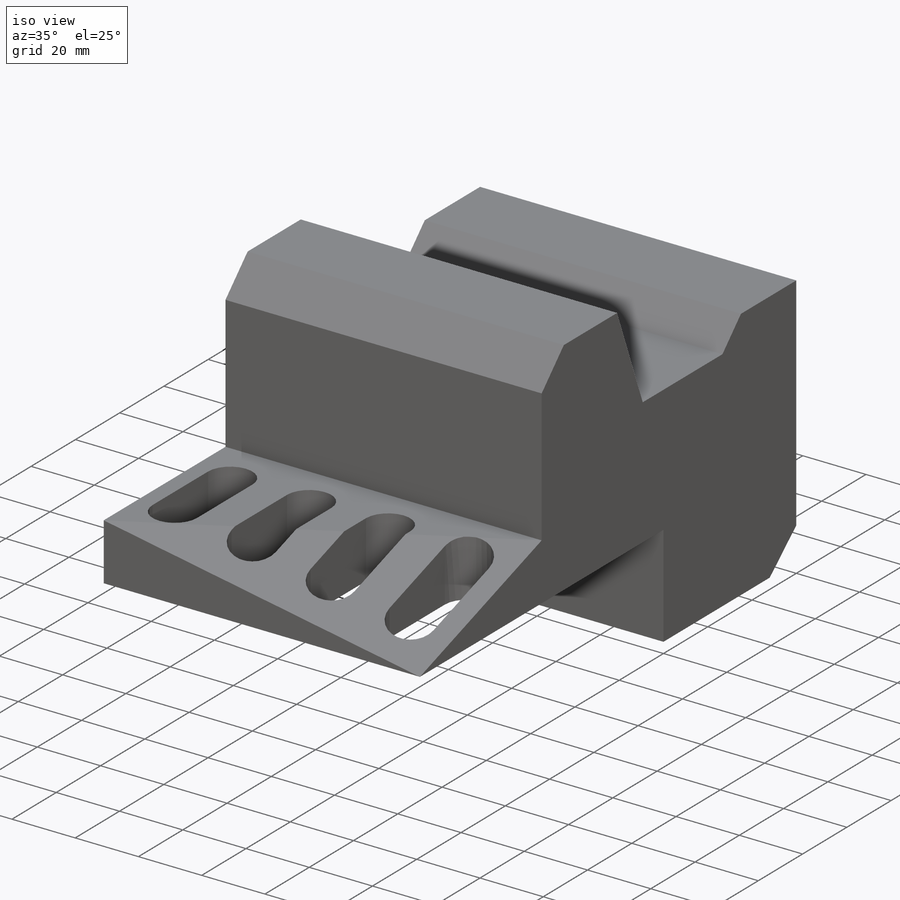
[diagram: iso view]
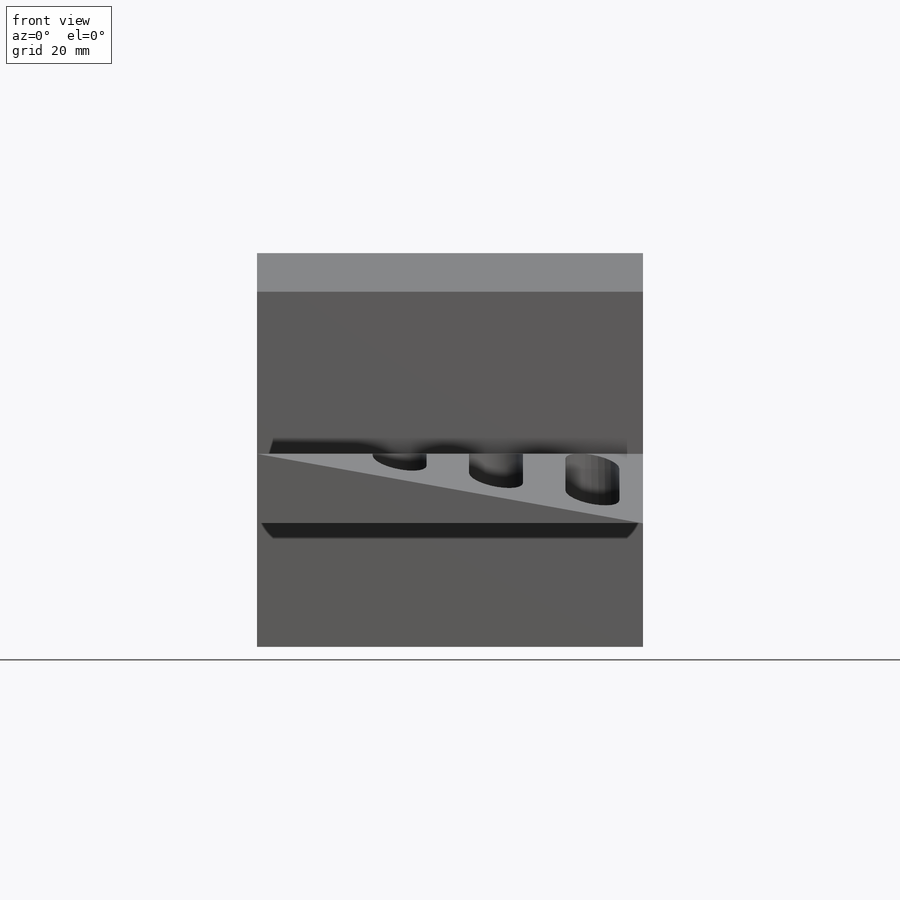
[diagram: front view]
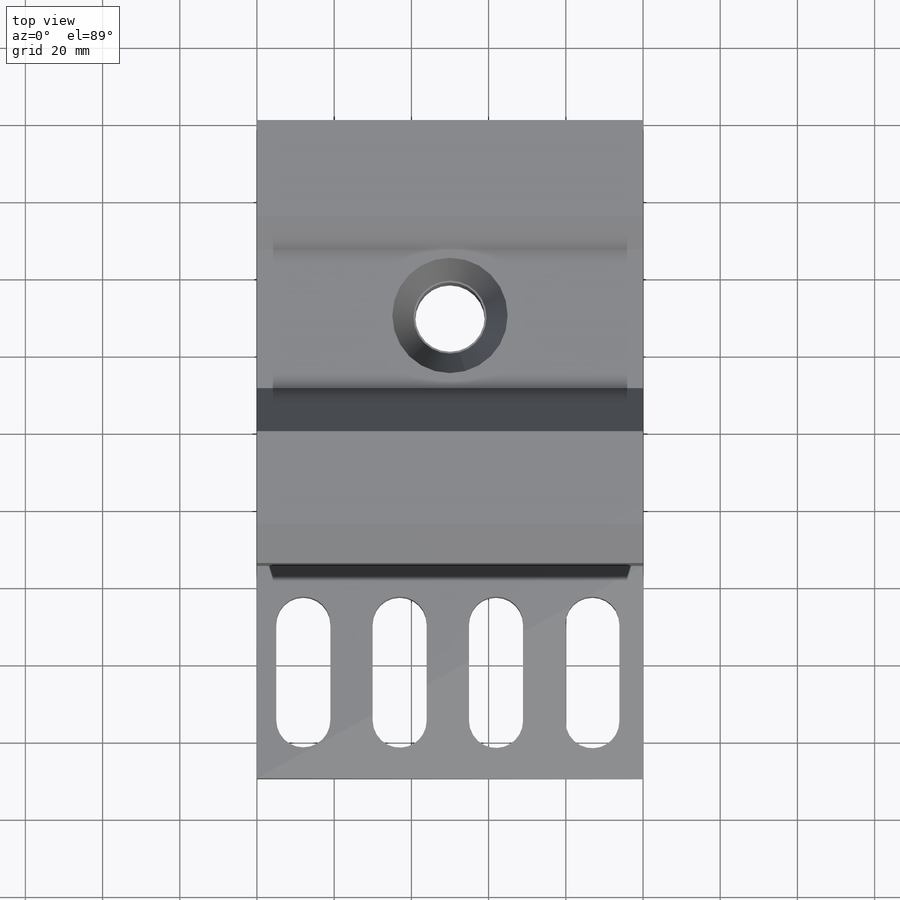
[diagram: top view]
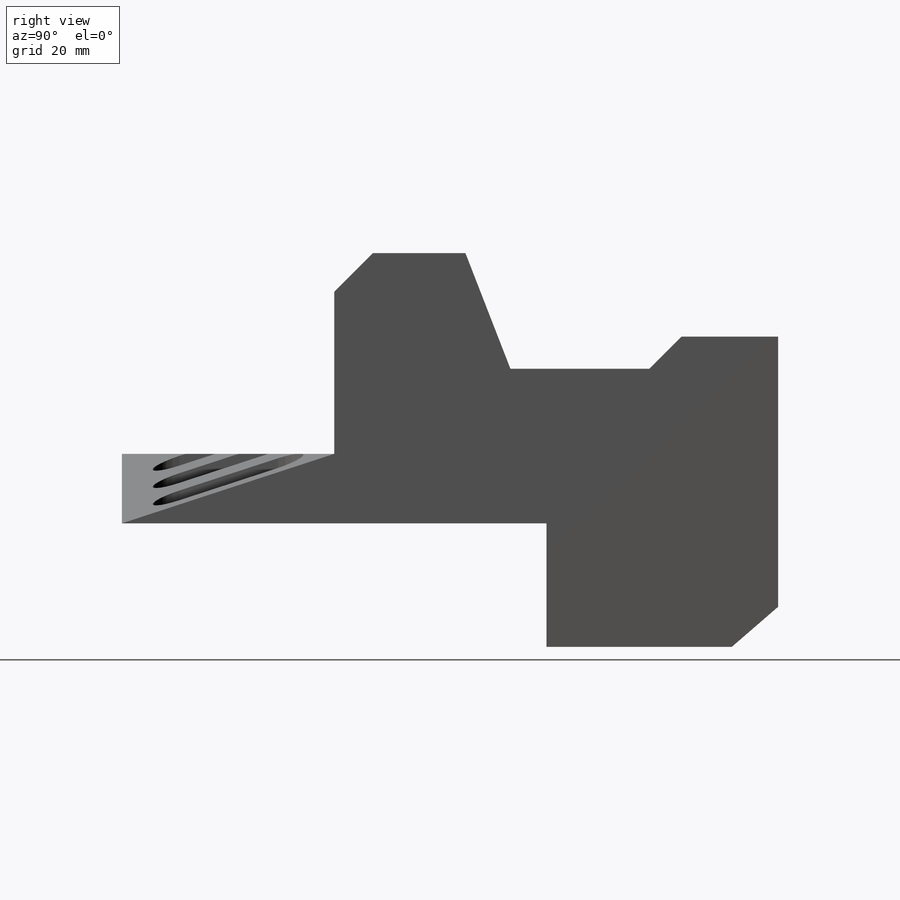
[diagram: right view]
SOLIDWORKS PART (.sldprt)
format: sldprt  version: not decoded by parser v0  size: 278,016 bytes
history: native  units: mm
features: sketch x6, cut_extrude x5, plane x4, material x1, extrude x1 (+9 scaffold rows collapsed)
feature tree (26):
  scaffold x9  (default folders/planes/origin — collapsed)
  material  "Material <não especificado>"
  plane  "Plano frontal"
  plane  "Plano superior"
  plane  "Plano direito"
  sketch  "Esboço3"  dims[c1.D1=80.38mm c1.D2=25.0mm c1.D3=60.0mm c1.D4=11.8mm c1.D5=11.8mm c2.D4=11.8mm c2.D5=36.0mm c2.D6=70.0mm c2.D7=48.0mm c2.D1=18.0mm c2.D3=55.0mm c2.D8=42.0mm c2.D9=14.14mm c2.D10=24.0mm c2.D11=102.0mm c2.D12=~12.131554mm c3.D6=70.0mm c3.D7=~71.781741mm c4.D6=110.0mm c4.D7=70.0mm c4.D12=170.0mm c4.D13=~32.00151mm c5.D6=110.0mm c5.D7=102.0mm c5.D11=80.38mm c5.D12=70.0mm c5.D13=158.0mm c6.D11=80.38mm]
  extrude  "Ressalto-extrusão1"  Depth=100mm
  sketch  "Esboço5"  dims[D1=12.52mm D2=7.0mm D3=5.0mm D5=24.96mm D4=4.0]
  cut_extrude  "Corte-extrusão1"  [1 undecoded]
  plane  "Plano1"
  sketch  "Esboço6"
  cut_extrude  "Corte-extrusão4"  Depth=87mm
  sketch  "Esboço9"  dims[D1=10.0mm D2=10.0mm D3=10.0mm D4=10.0mm D5=10.0mm D6=10.0mm D7=10.0mm D8=10.0mm D9=10.0mm D10=10.0mm D11=10.0mm]
  cut_extrude  "Corte-extrusão6"  Depth=20mm
  sketch  "Esboço10"  dims[D1=9.5mm]
  cut_extrude  "Corte-extrusão8"  [1 undecoded]
  sketch  "Esboço12"  dims[D1=~16.519143mm]
  cut_extrude  "Corte-extrusão10"  Depth=24.04mm
decode coverage: 9 of 12 modeling features carry decoded parameters
note: ~ marks probable driven/reference dimensions
note: 2 parameter values undecoded
note: suppression state not decoded; provenance and decode notes live in map.json
